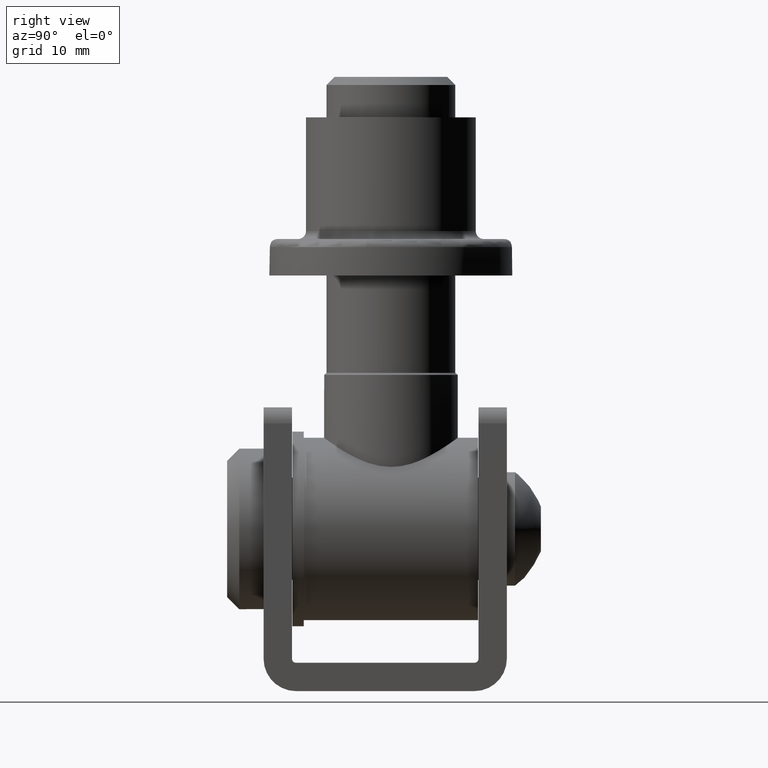
[diagram: clean part render]
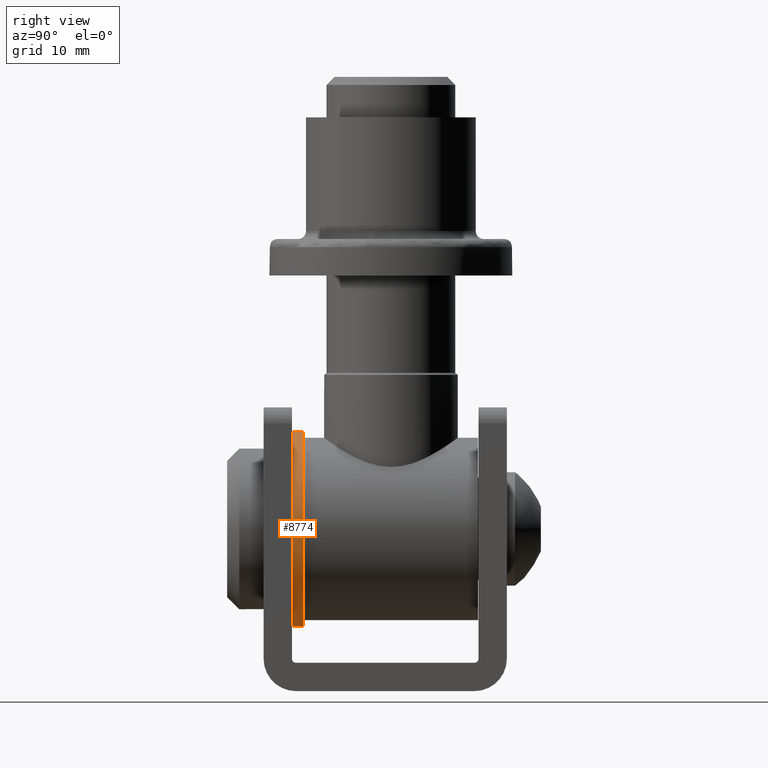
[diagram: same view with one face highlighted and labeled with its STEP entity id]
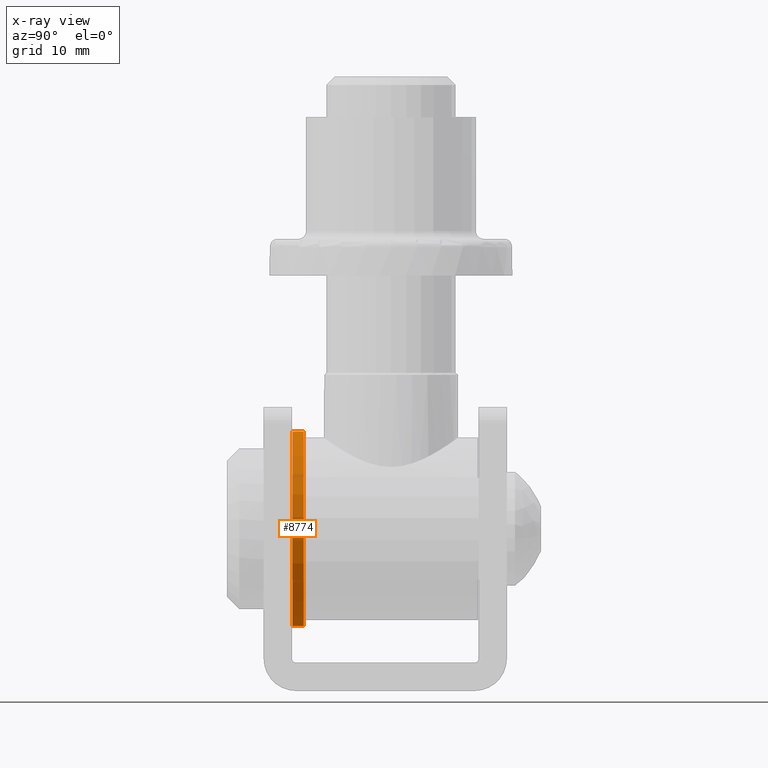
[diagram: x-ray of the same camera — body ghosted, the highlighted face saturated]
A machine part, right view. The second image highlights one B-rep face of the part: STEP entity #8774.
The next image is the same camera in x-ray: the body ghosted, the highlighted face saturated — about 0% of this face is hidden behind the body in this view.
In plain terms, the highlighted cylindrical surface (bore or boss wall) has radius 12 mm, axis along (-0, -1, -0).
Its self-contained STEP definition (entity closure, byte-faithful):
#224 = EDGE_LOOP ( 'NONE', ( #11756 ) ) ;
#2219 = DIRECTION ( 'NONE',  ( 0.000000000000000000, 1.000000000000000000, 0.000000000000000000 ) ) ;
#2282 = EDGE_CURVE ( 'NONE', #13296, #13296, #6382, .T. ) ;
#2355 = CARTESIAN_POINT ( 'NONE',  ( 0.000000000000000000, -0.6999999999999999556, 0.000000000000000000 ) ) ;
#4519 = DIRECTION ( 'NONE',  ( 0.000000000000000000, 0.000000000000000000, 1.000000000000000000 ) ) ;
#5314 = VERTEX_POINT ( 'NONE', #7928 ) ;
#5386 = CARTESIAN_POINT ( 'NONE',  ( 0.000000000000000000, 0.6999999999999999556, 0.000000000000000000 ) ) ;
#5896 = DIRECTION ( 'NONE',  ( 0.000000000000000000, 0.000000000000000000, -1.000000000000000000 ) ) ;
#6260 = EDGE_LOOP ( 'NONE', ( #12398 ) ) ;
#6382 = CIRCLE ( 'NONE', #11694, 12.00000000000000178 ) ;
#6905 = FACE_OUTER_BOUND ( 'NONE', #224, .T. ) ;
#7034 = AXIS2_PLACEMENT_3D ( 'NONE', #5386, #14023, #11972 ) ;
#7523 = CIRCLE ( 'NONE', #7034, 12.00000000000000178 ) ;
#7844 = CARTESIAN_POINT ( 'NONE',  ( 0.000000000000000000, -0.6999999999999999556, 12.00000000000000178 ) ) ;
#7928 = CARTESIAN_POINT ( 'NONE',  ( 0.000000000000000000, 0.6999999999999999556, 12.00000000000000178 ) ) ;
#8199 = CARTESIAN_POINT ( 'NONE',  ( 0.000000000000000000, 0.6999999999999999556, 0.000000000000000000 ) ) ;
#8774 = ADVANCED_FACE ( 'NONE', ( #6905, #14073 ), #9819, .T. ) ;
#9819 = CYLINDRICAL_SURFACE ( 'NONE', #11864, 12.00000000000000178 ) ;
#11401 = DIRECTION ( 'NONE',  ( -0.000000000000000000, -1.000000000000000000, -0.000000000000000000 ) ) ;
#11694 = AXIS2_PLACEMENT_3D ( 'NONE', #2355, #2219, #4519 ) ;
#11756 = ORIENTED_EDGE ( 'NONE', *, *, #13473, .F. ) ;
#11864 = AXIS2_PLACEMENT_3D ( 'NONE', #8199, #11401, #5896 ) ;
#11972 = DIRECTION ( 'NONE',  ( 0.000000000000000000, 0.000000000000000000, 1.000000000000000000 ) ) ;
#12398 = ORIENTED_EDGE ( 'NONE', *, *, #2282, .T. ) ;
#13296 = VERTEX_POINT ( 'NONE', #7844 ) ;
#13473 = EDGE_CURVE ( 'NONE', #5314, #5314, #7523, .T. ) ;
#14023 = DIRECTION ( 'NONE',  ( 0.000000000000000000, 1.000000000000000000, 0.000000000000000000 ) ) ;
#14073 = FACE_OUTER_BOUND ( 'NONE', #6260, .T. ) ;